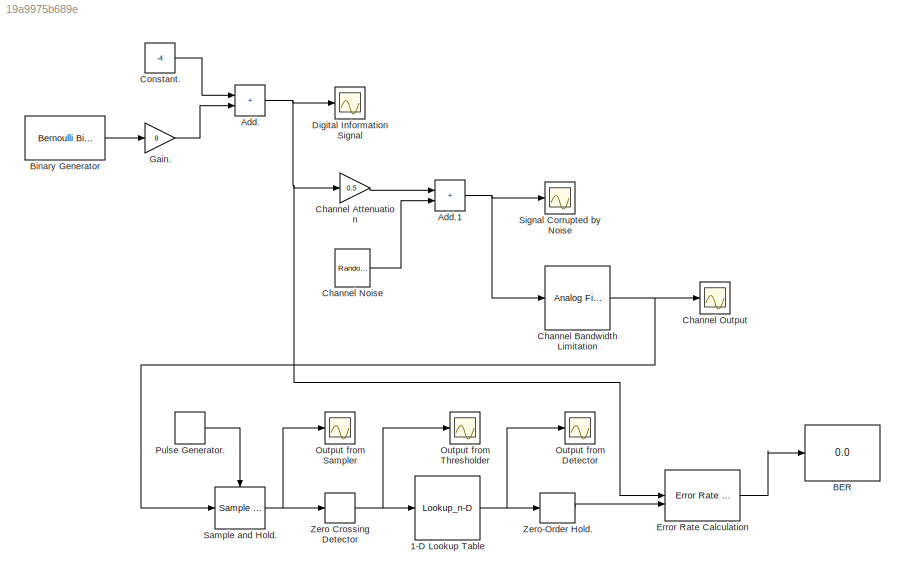
MODEL slx_19a9975b689e
KIND model
CONFIG AbsTol = auto
CONFIG EnableMultiTasking = off
CONFIG FixedStep = auto
CONFIG MaxStep = auto
CONFIG MinStep = auto
CONFIG RelTol = 1e-3
CONFIG SampleTimeConstraint = Unconstrained
CONFIG SolverName = VariableStepAuto
CONFIG StartTime = 0.0
CONFIG StopTime = 100
BLOCK [Lookup_n-D] 1-D Lookup Table
  BreakpointsForDimension1 = [-1,1]
  InputPortMap = u0
  InternalRulePriority = Speed
  NumberOfTableDimensions = 1
  RndMeth = Simplest
  Table = [-4,4]
BLOCK [Sum] Add.
  IconShape = rectangular
BLOCK [Sum] Add.1
  IconShape = rectangular
BLOCK [Display] BER
  Decimation = 1
BLOCK [Reference] Binary Generator  REF=commrandsrc3/Bernoulli Binary
Generator
  SourceBlock = commrandsrc3/Bernoulli Binary\nGenerator
  SourceType = Bernoulli Binary Generator
BLOCK [Gain] Channel Attenuation
  Gain = 0.5
BLOCK [Reference] Channel Bandwidth Limitation  REF=dspfdesign/Analog
Filter Design
  SourceBlock = dspfdesign/Analog\nFilter Design
  SourceType = Analog Filter Design
BLOCK [Reference] Channel Noise  REF=dspsrcs4/Random
Source
  SourceBlock = dspsrcs4/Random\nSource
  SourceType = Random Source
  UserDataPersistent = on
BLOCK [Scope] Channel Output
  Floating = off
  NumInputPorts = 1
  ScopeSpecificationString = Simulink.scopes.TimeScopeBlockCfg('CurrentConfiguration', extmgr.ConfigurationSet(extmgr.Configuration('Core','General UI',true),extmgr.Configuration('Core','Source UI',true),extmgr.Configuration('Sources','WiredSimulink',true),extmgr.Configuration('Visuals','Time Domain',true,'SerializedDisplays',{struct('MinYLimReal','-2.9561','MaxYLimReal','-2.62492','YLabelReal','','MinYLimMag','0.00000','MaxY...<+1400ch>
BLOCK [Constant] Constant.
  Value = -4
BLOCK [Scope] Digital Information Signal
  Floating = off
  NumInputPorts = 1
  ScopeSpecificationString = Simulink.scopes.TimeScopeBlockCfg('CurrentConfiguration', extmgr.ConfigurationSet(extmgr.Configuration('Core','General UI',true),extmgr.Configuration('Core','Source UI',true),extmgr.Configuration('Sources','WiredSimulink',true,'DataLoggingVariableName','ScopeData5'),extmgr.Configuration('Visuals','Time Domain',true,'SerializedDisplays',{struct('MinYLimReal','-5.00000','MaxYLimReal','5.00000','YLab...<+1439ch>
BLOCK [Reference] Error Rate Calculation  REF=commsink2/Error Rate
Calculation
  SourceBlock = commsink2/Error Rate\nCalculation
  SourceType = Error Rate Calculation
BLOCK [Gain] Gain.
  Gain = 8
BLOCK [Scope] Output from Detector
  Floating = off
  NumInputPorts = 1
  ScopeSpecificationString = Simulink.scopes.TimeScopeBlockCfg('CurrentConfiguration', extmgr.ConfigurationSet(extmgr.Configuration('Core','General UI',true),extmgr.Configuration('Core','Source UI',true),extmgr.Configuration('Sources','WiredSimulink',true,'DataLoggingVariableName','ScopeData2'),extmgr.Configuration('Visuals','Time Domain',true,'SerializedDisplays',{struct('MinYLimReal','-5.00000','MaxYLimReal','5.00000','YLab...<+1406ch>
BLOCK [Scope] Output from Sampler
  Floating = off
  NumInputPorts = 1
  ScopeSpecificationString = Simulink.scopes.TimeScopeBlockCfg('CurrentConfiguration', extmgr.ConfigurationSet(extmgr.Configuration('Core','General UI',true),extmgr.Configuration('Core','Source UI',true),extmgr.Configuration('Sources','WiredSimulink',true,'DataLoggingVariableName','ScopeData4'),extmgr.Configuration('Visuals','Time Domain',true,'SerializedDisplays',{struct('MinYLimReal','-1.06879','MaxYLimReal','0.07323','YLab...<+1430ch>
BLOCK [Scope] Output from Thresholder
  Floating = off
  NumInputPorts = 1
  ScopeSpecificationString = Simulink.scopes.TimeScopeBlockCfg('CurrentConfiguration', extmgr.ConfigurationSet(extmgr.Configuration('Core','General UI',true),extmgr.Configuration('Core','Source UI',true),extmgr.Configuration('Sources','WiredSimulink',true,'DataLoggingVariableName','ScopeData3'),extmgr.Configuration('Visuals','Time Domain',true,'SerializedDisplays',{struct('MinYLimReal','-1.25','MaxYLimReal','1.25','YLabelReal...<+1364ch>
BLOCK [DiscretePulseGenerator] Pulse Generator.
  Period = 0.1
  PulseType = Time based
  PulseWidth = 50
BLOCK [Reference] Sample and Hold.  REF=dspsigops/Sample
and Hold
  SourceBlock = dspsigops/Sample\nand Hold
  SourceType = Sample and Hold
BLOCK [Scope] Signal Corrupted by Noise
  Floating = off
  NumInputPorts = 1
  ScopeSpecificationString = Simulink.scopes.TimeScopeBlockCfg('CurrentConfiguration', extmgr.ConfigurationSet(extmgr.Configuration('Core','General UI',true),extmgr.Configuration('Core','Source UI',true),extmgr.Configuration('Sources','WiredSimulink',true,'DataLoggingVariableName','ScopeData1'),extmgr.Configuration('Visuals','Time Domain',true,'SerializedDisplays',{struct('MinYLimReal','-6.68429','MaxYLimReal','7.10991','YLab...<+1439ch>
BLOCK [Signum] Zero Crossing Detector
BLOCK [ZeroOrderHold] Zero-Order Hold.
  SampleTime = 0.1
NET 1-D Lookup Table:1 -> Output from Detector:1, Zero-Order Hold.:1
NET Add.1:1 -> Channel Bandwidth Limitation:1, Signal Corrupted by Noise:1
NET Add.:1 -> Channel Attenuation:1, Digital Information Signal:1, Error Rate Calculation:1
LINE Binary Generator:1 -> Gain.:1
LINE Channel Attenuation:1 -> Add.1:1
NET Channel Bandwidth Limitation:1 -> Channel Output:1, Sample and Hold.:1
LINE Channel Noise:1 -> Add.1:2
LINE Constant.:1 -> Add.:1
LINE Error Rate Calculation:1 -> BER:1
LINE Gain.:1 -> Add.:2
LINE Pulse Generator.:1 -> Sample and Hold.:trigger
NET Sample and Hold.:1 -> Output from Sampler:1, Zero Crossing Detector:1
NET Zero Crossing Detector:1 -> 1-D Lookup Table:1, Output from Thresholder:1
LINE Zero-Order Hold.:1 -> Error Rate Calculation:2
note: NET lines group one-source signal fan-out (src -> all destinations, sorted); 1:1 wires keep LINE
